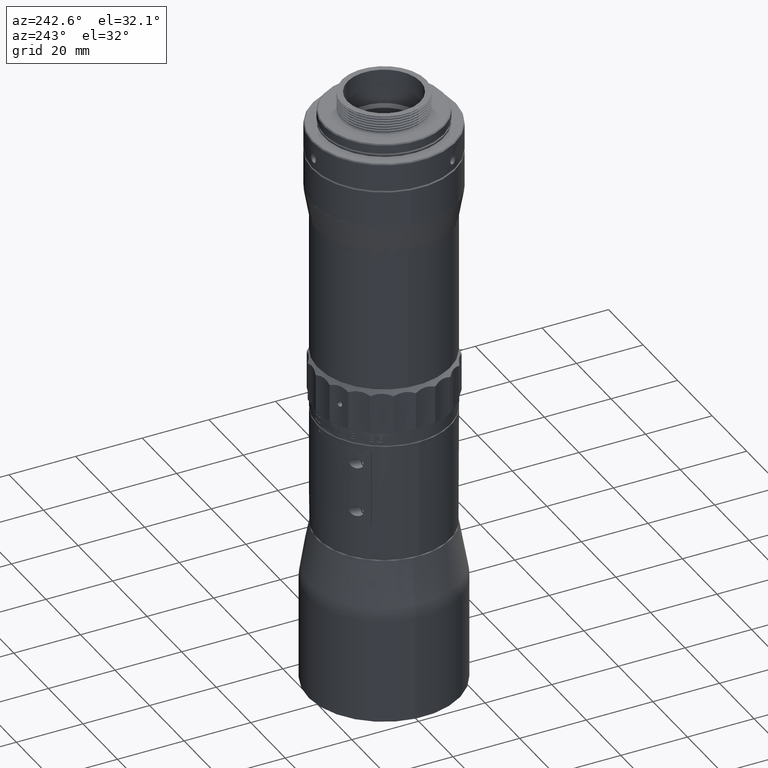
[diagram: clean part render]
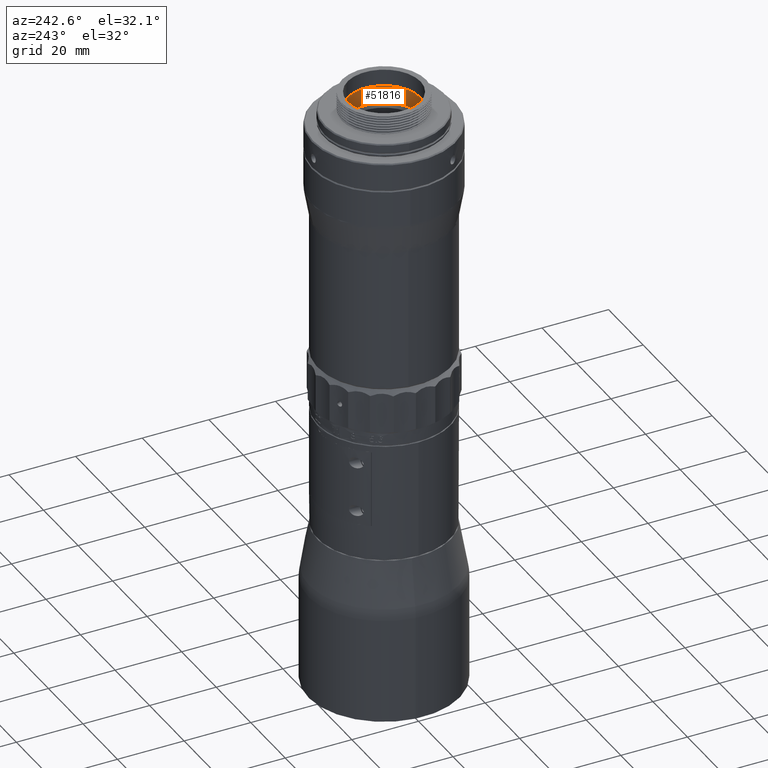
[diagram: same view with one face highlighted and labeled with its STEP entity id]
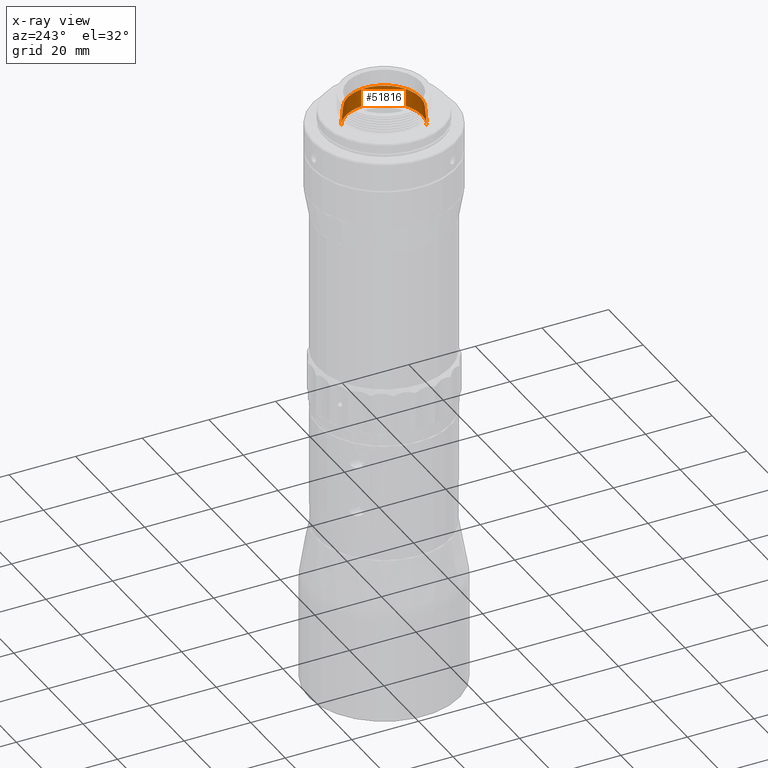
[diagram: x-ray of the same camera — body ghosted, the highlighted face saturated]
A machine part, auxiliary view. The second image highlights one B-rep face of the part: STEP entity #51816.
The next image is the same camera in x-ray: the body ghosted, the highlighted face saturated — about 0% of this face is hidden behind the body in this view.
In plain terms, the highlighted conical surface has half-angle 5 deg.
Its self-contained STEP definition (entity closure, byte-faithful):
#4146 = CARTESIAN_POINT ( 'NONE',  ( -1.758593234427053900E-015, -2.084227507821598200E-014, 84.47882109615450500 ) ) ;
#10383 = DIRECTION ( 'NONE',  ( -0.8781501210613594800, 0.4783851637330738300, 1.267377881992187800E-015 ) ) ;
#11094 = EDGE_CURVE ( 'NONE', #31870, #26236, #40910, .T. ) ;
#12862 = CIRCLE ( 'NONE', #36115, 10.94999999999999900 ) ;
#13559 = FACE_OUTER_BOUND ( 'NONE', #63323, .T. ) ;
#13750 = VERTEX_POINT ( 'NONE', #33694 ) ;
#16028 = DIRECTION ( 'NONE',  ( -1.373296395499550800E-018, 5.441170195040599500E-018, -1.000000000000000000 ) ) ;
#18133 = EDGE_CURVE ( 'NONE', #66119, #26236, #39310, .T. ) ;
#22329 = DIRECTION ( 'NONE',  ( 0.4783851637330737100, 0.8781501210613593700, 0.0000000000000000000 ) ) ;
#23249 = DIRECTION ( 'NONE',  ( -0.04169401426461325600, -0.07653582604504351200, -0.9961946980917459900 ) ) ;
#24906 = DIRECTION ( 'NONE',  ( 0.04169401426461327000, 0.07653582604504349800, -0.9961946980917459900 ) ) ;
#26236 = VERTEX_POINT ( 'NONE', #71794 ) ;
#28336 = ORIENTED_EDGE ( 'NONE', *, *, #48978, .F. ) ;
#29978 = ORIENTED_EDGE ( 'NONE', *, *, #54654, .T. ) ;
#31870 = VERTEX_POINT ( 'NONE', #35287 ) ;
#33694 = CARTESIAN_POINT ( 'NONE',  ( 5.238317542877156900, 9.615743825621864400, 90.24952152878459800 ) ) ;
#34446 = LINE ( 'NONE', #62998, #60657 ) ;
#35287 = CARTESIAN_POINT ( 'NONE',  ( -5.238317542877158700, -9.615743825621905200, 90.24952152878459800 ) ) ;
#36115 = AXIS2_PLACEMENT_3D ( 'NONE', #54979, #66461, #10383 ) ;
#38455 = CARTESIAN_POINT ( 'NONE',  ( -1.758593234427053900E-015, -2.084227507821598200E-014, 84.47882109615450500 ) ) ;
#38646 = AXIS2_PLACEMENT_3D ( 'NONE', #38455, #16028, #22329 ) ;
#39310 = CIRCLE ( 'NONE', #44824, 11.45487086845924600 ) ;
#40910 = LINE ( 'NONE', #45442, #45214 ) ;
#43460 = ORIENTED_EDGE ( 'NONE', *, *, #11094, .F. ) ;
#43589 = DIRECTION ( 'NONE',  ( 0.4783851637330737100, 0.8781501210613593700, 0.0000000000000000000 ) ) ;
#44824 = AXIS2_PLACEMENT_3D ( 'NONE', #4146, #60658, #43589 ) ;
#45214 = VECTOR ( 'NONE', #23249, 1000.000000000000100 ) ;
#45442 = CARTESIAN_POINT ( 'NONE',  ( -5.479840275949092300, -10.05909623987974800, 84.47882109615450500 ) ) ;
#48978 = EDGE_CURVE ( 'NONE', #13750, #31870, #12862, .T. ) ;
#51816 = ADVANCED_FACE ( 'NONE', ( #13559 ), #70282, .F. ) ;
#54654 = EDGE_CURVE ( 'NONE', #13750, #66119, #34446, .T. ) ;
#54979 = CARTESIAN_POINT ( 'NONE',  ( -1.794338365502486400E-015, -2.072548758141367800E-014, 90.24952152878459800 ) ) ;
#60657 = VECTOR ( 'NONE', #24906, 1000.000000000000100 ) ;
#60658 = DIRECTION ( 'NONE',  ( -1.373296395499550800E-018, 5.441170195040599500E-018, -1.000000000000000000 ) ) ;
#62998 = CARTESIAN_POINT ( 'NONE',  ( 5.479840275949090500, 10.05909623987970400, 84.47882109615450500 ) ) ;
#63323 = EDGE_LOOP ( 'NONE', ( #43460, #28336, #29978, #70809 ) ) ;
#66119 = VERTEX_POINT ( 'NONE', #66930 ) ;
#66461 = DIRECTION ( 'NONE',  ( 6.194244787567511400E-018, -2.023801064805508000E-017, -1.000000000000000000 ) ) ;
#66930 = CARTESIAN_POINT ( 'NONE',  ( 5.479840275949090500, 10.05909623987970400, 84.47882109615450500 ) ) ;
#70282 = CONICAL_SURFACE ( 'NONE', #38646, 11.45487086845924600, 0.08726646259971052000 ) ;
#70809 = ORIENTED_EDGE ( 'NONE', *, *, #18133, .T. ) ;
#71794 = CARTESIAN_POINT ( 'NONE',  ( -5.479840275949092300, -10.05909623987974800, 84.47882109615450500 ) ) ;